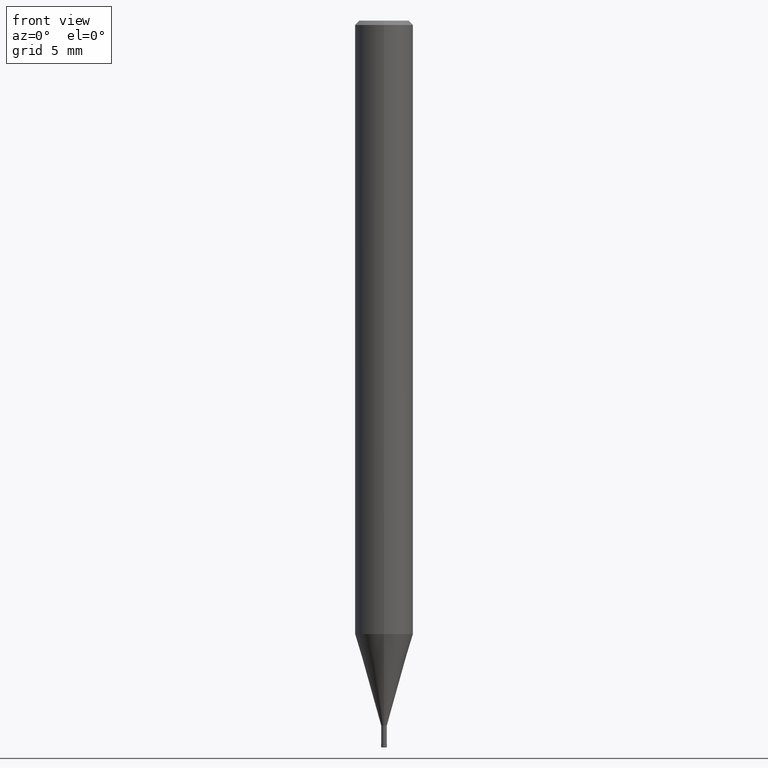
[diagram: clean part render]
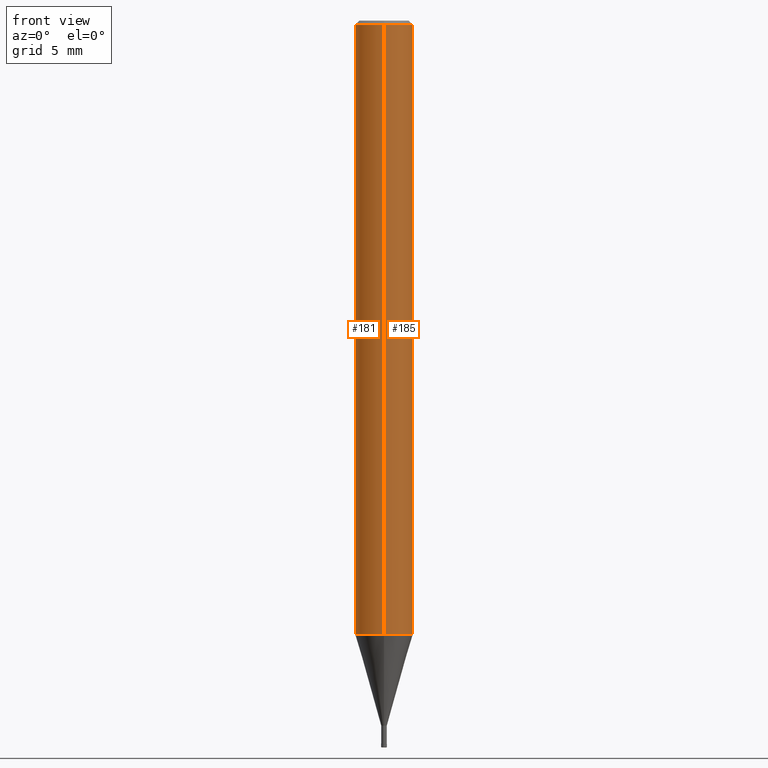
[diagram: same view with one multi-face feature highlighted, each face labeled with its STEP entity id]
A machine part, front view. The highlighted faces form ONE feature: a constant-radius fillet chain: 2 tangent blend faces with common blend radius 2 mm. The faces share edges in the B-rep.
Their STEP definitions:
[1] entity #181 (Cylinder):
#181=ADVANCED_FACE('',(#429),#430,.T.);
#225=EDGE_CURVE('',#325,#295,#478,.T.);
#227=EDGE_CURVE('',#263,#295,#480,.T.);
#233=EDGE_CURVE('',#347,#325,#486,.T.);
#263=VERTEX_POINT('',#521);
#295=VERTEX_POINT('',#553);
#325=VERTEX_POINT('',#587);
#347=VERTEX_POINT('',#612);
#349=EDGE_CURVE('',#263,#347,#614,.T.);
#429=FACE_OUTER_BOUND('',#698,.T.);
#430=CYLINDRICAL_SURFACE('',#699,2.0);
#478=LINE('',#761,#762);
#480=CIRCLE('',#765,2.0);
#486=CIRCLE('',#773,2.0);
#521=CARTESIAN_POINT('',(2.44921270764475E-016,-2.0,-42.186));
#553=CARTESIAN_POINT('',(0.0,2.0,-42.186));
#587=CARTESIAN_POINT('',(0.0,2.0,-0.289999999999999));
#612=CARTESIAN_POINT('',(2.44921270764475E-016,-2.0,-0.289999999999999));
#614=LINE('',#932,#933);
#698=EDGE_LOOP('',(#1040,#1041,#1042,#1043));
#699=AXIS2_PLACEMENT_3D('',#1044,#1045,#1046);
#761=CARTESIAN_POINT('',(-2.44921270764475E-016,2.0,-21.238));
#762=VECTOR('',#1102,1.0);
#765=AXIS2_PLACEMENT_3D('',#1103,#1104,#1105);
#773=AXIS2_PLACEMENT_3D('',#1109,#1110,#1111);
#932=CARTESIAN_POINT('',(2.44921270764475E-016,-2.0,-21.238));
#933=VECTOR('',#1257,1.0);
#1040=ORIENTED_EDGE('',*,*,#225,.T.);
#1041=ORIENTED_EDGE('',*,*,#227,.F.);
#1042=ORIENTED_EDGE('',*,*,#349,.T.);
#1043=ORIENTED_EDGE('',*,*,#233,.T.);
#1044=CARTESIAN_POINT('',(0.0,0.0,-21.238));
#1045=DIRECTION('',(-0.0,-0.0,1.0));
#1046=DIRECTION('',(0.0,1.0,0.0));
#1102=DIRECTION('',(0.0,0.0,-1.0));
#1103=CARTESIAN_POINT('',(0.0,0.0,-42.186));
#1104=DIRECTION('',(0.0,0.0,-1.0));
#1105=DIRECTION('',(0.0,1.0,0.0));
#1109=CARTESIAN_POINT('',(0.0,0.0,-0.289999999999999));
#1110=DIRECTION('',(0.0,0.0,-1.0));
#1111=DIRECTION('',(0.0,1.0,0.0));
#1257=DIRECTION('',(-0.0,-0.0,1.0));
[2] entity #185 (Cylinder):
#185=ADVANCED_FACE('',(#434),#435,.T.);
#225=EDGE_CURVE('',#325,#295,#478,.T.);
#261=EDGE_CURVE('',#295,#263,#519,.T.);
#263=VERTEX_POINT('',#521);
#295=VERTEX_POINT('',#553);
#297=EDGE_CURVE('',#325,#347,#555,.T.);
#325=VERTEX_POINT('',#587);
#347=VERTEX_POINT('',#612);
#349=EDGE_CURVE('',#263,#347,#614,.T.);
#434=FACE_OUTER_BOUND('',#703,.T.);
#435=CYLINDRICAL_SURFACE('',#704,2.0);
#478=LINE('',#761,#762);
#519=CIRCLE('',#812,2.0);
#521=CARTESIAN_POINT('',(2.44921270764475E-016,-2.0,-42.186));
#553=CARTESIAN_POINT('',(0.0,2.0,-42.186));
#555=CIRCLE('',#861,2.0);
#587=CARTESIAN_POINT('',(0.0,2.0,-0.289999999999999));
#612=CARTESIAN_POINT('',(2.44921270764475E-016,-2.0,-0.289999999999999));
#614=LINE('',#932,#933);
#703=EDGE_LOOP('',(#1048,#1049,#1050,#1051));
#704=AXIS2_PLACEMENT_3D('',#1052,#1053,#1054);
#761=CARTESIAN_POINT('',(-2.44921270764475E-016,2.0,-21.238));
#762=VECTOR('',#1102,1.0);
#812=AXIS2_PLACEMENT_3D('',#1158,#1159,#1160);
#861=AXIS2_PLACEMENT_3D('',#1187,#1188,#1189);
#932=CARTESIAN_POINT('',(2.44921270764475E-016,-2.0,-21.238));
#933=VECTOR('',#1257,1.0);
#1048=ORIENTED_EDGE('',*,*,#225,.F.);
#1049=ORIENTED_EDGE('',*,*,#297,.T.);
#1050=ORIENTED_EDGE('',*,*,#349,.F.);
#1051=ORIENTED_EDGE('',*,*,#261,.F.);
#1052=CARTESIAN_POINT('',(0.0,0.0,-21.238));
#1053=DIRECTION('',(-0.0,-0.0,1.0));
#1054=DIRECTION('',(0.0,1.0,0.0));
#1102=DIRECTION('',(0.0,0.0,-1.0));
#1158=CARTESIAN_POINT('',(0.0,0.0,-42.186));
#1159=DIRECTION('',(0.0,0.0,-1.0));
#1160=DIRECTION('',(0.0,1.0,0.0));
#1187=CARTESIAN_POINT('',(0.0,0.0,-0.289999999999999));
#1188=DIRECTION('',(0.0,0.0,-1.0));
#1189=DIRECTION('',(0.0,1.0,0.0));
#1257=DIRECTION('',(-0.0,-0.0,1.0));